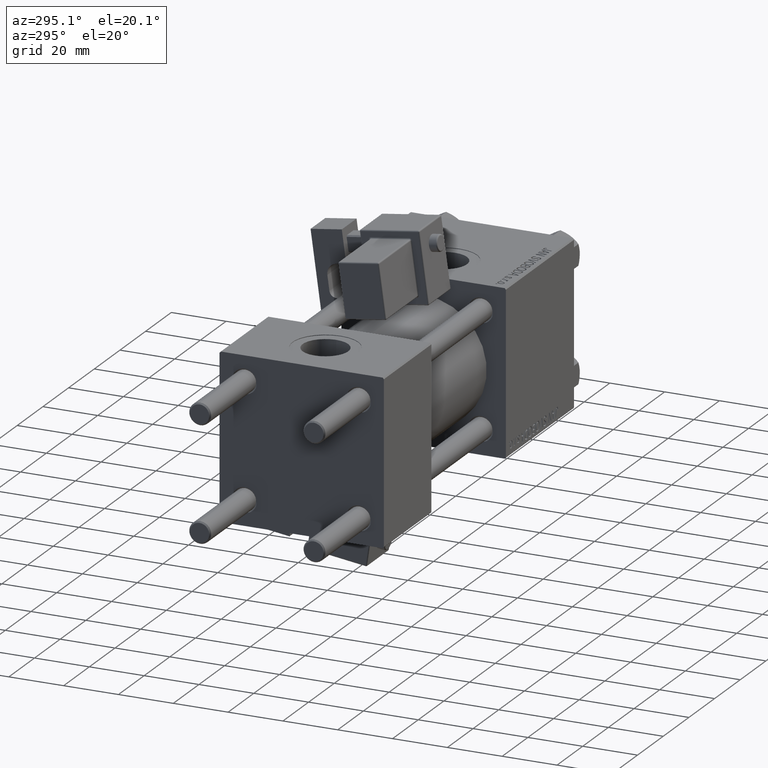
[diagram: clean part render]
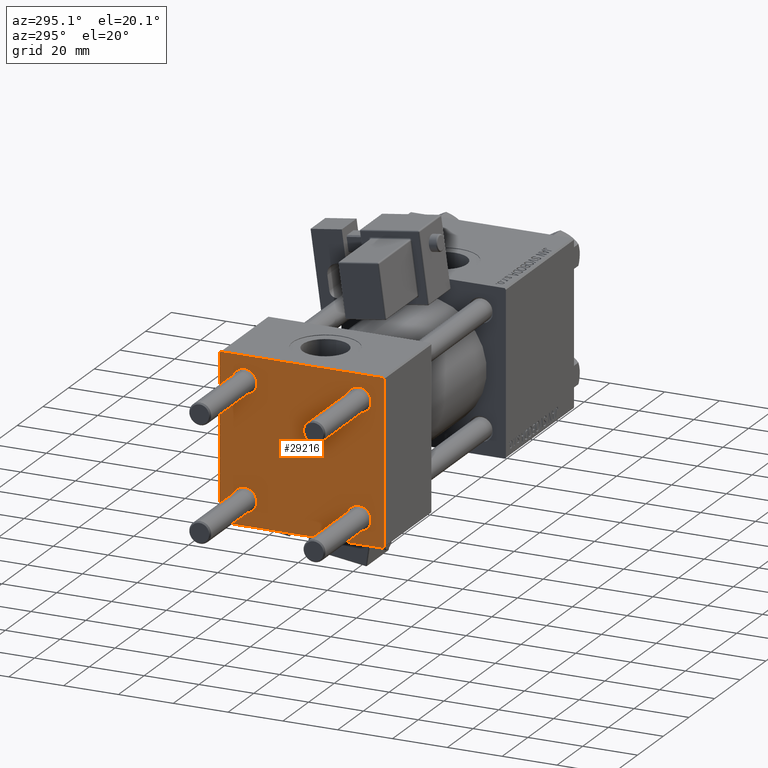
[diagram: same view with one face highlighted and labeled with its STEP entity id]
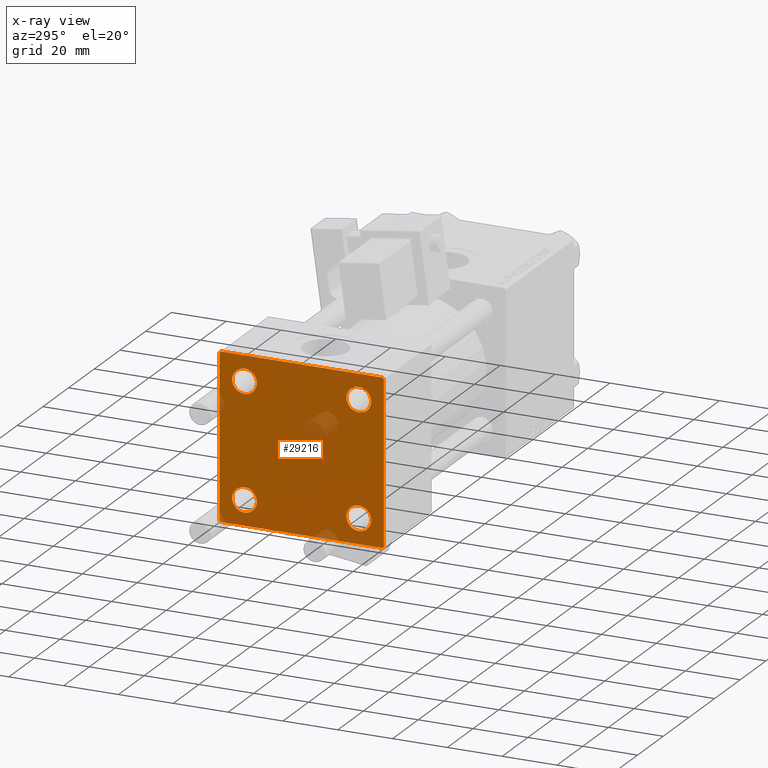
[diagram: x-ray of the same camera — body ghosted, the highlighted face saturated]
A machine part, auxiliary view. The second image highlights one B-rep face of the part: STEP entity #29216.
The next image is the same camera in x-ray: the body ghosted, the highlighted face saturated — about 4% of this face is hidden behind the body in this view.
In plain terms, the highlighted planar face has unit normal (-1, 0, 0).
Its self-contained STEP definition (entity closure, byte-faithful):
#207 = EDGE_CURVE ( 'NONE', #37905, #6154, #31478, .T. ) ;
#260 = EDGE_CURVE ( 'NONE', #13484, #4597, #34069, .T. ) ;
#2279 = CARTESIAN_POINT ( 'NONE',  ( 0.000000000000000000, -29.75000000000001066, -29.75000000000001066 ) ) ;
#2592 = CIRCLE ( 'NONE', #25284, 4.500000000000017764 ) ;
#2631 = EDGE_CURVE ( 'NONE', #45653, #3071, #40532, .T. ) ;
#3071 = VERTEX_POINT ( 'NONE', #14601 ) ;
#3127 = DIRECTION ( 'NONE',  ( 0.000000000000000000, 0.000000000000000000, 1.000000000000000000 ) ) ;
#3742 = CARTESIAN_POINT ( 'NONE',  ( 0.000000000000000000, -20.84999999999999076, -25.35000000000002274 ) ) ;
#4597 = VERTEX_POINT ( 'NONE', #34693 ) ;
#4680 = CARTESIAN_POINT ( 'NONE',  ( 0.000000000000000000, 20.84999999999999787, 20.85000000000000142 ) ) ;
#4714 = EDGE_CURVE ( 'NONE', #27192, #20747, #16222, .T. ) ;
#4750 = CARTESIAN_POINT ( 'NONE',  ( 0.000000000000000000, -20.84999999999999076, -20.85000000000000497 ) ) ;
#5234 = ORIENTED_EDGE ( 'NONE', *, *, #23193, .T. ) ;
#5280 = FACE_BOUND ( 'NONE', #42177, .T. ) ;
#5487 = ORIENTED_EDGE ( 'NONE', *, *, #20488, .T. ) ;
#5583 = VECTOR ( 'NONE', #35201, 1000.000000000000114 ) ;
#6072 = AXIS2_PLACEMENT_3D ( 'NONE', #4680, #32850, #45481 ) ;
#6154 = VERTEX_POINT ( 'NONE', #47894 ) ;
#6477 = AXIS2_PLACEMENT_3D ( 'NONE', #9665, #49172, #29682 ) ;
#6654 = DIRECTION ( 'NONE',  ( -0.000000000000000000, 0.7071067811865474617, 0.7071067811865474617 ) ) ;
#6988 = CARTESIAN_POINT ( 'NONE',  ( 0.000000000000000000, 20.84999999999999787, 16.34999999999998366 ) ) ;
#7073 = CARTESIAN_POINT ( 'NONE',  ( 0.000000000000000000, -20.84999999999999076, -20.85000000000000497 ) ) ;
#7699 = CARTESIAN_POINT ( 'NONE',  ( 0.000000000000000000, -20.84999999999999076, 16.34999999999998721 ) ) ;
#8148 = CARTESIAN_POINT ( 'NONE',  ( 0.000000000000000000, 29.74999999999999645, 29.74999999999999645 ) ) ;
#8557 = AXIS2_PLACEMENT_3D ( 'NONE', #30446, #50463, #18084 ) ;
#8914 = DIRECTION ( 'NONE',  ( 0.000000000000000000, 0.7071067811865474617, -0.7071067811865474617 ) ) ;
#9258 = DIRECTION ( 'NONE',  ( 0.000000000000000000, 0.000000000000000000, 1.000000000000000000 ) ) ;
#9488 = PLANE ( 'NONE',  #48918 ) ;
#9665 = CARTESIAN_POINT ( 'NONE',  ( 0.000000000000000000, 20.84999999999999787, 20.85000000000000142 ) ) ;
#9811 = DIRECTION ( 'NONE',  ( 0.000000000000000000, 0.000000000000000000, 1.000000000000000000 ) ) ;
#10215 = ORIENTED_EDGE ( 'NONE', *, *, #19589, .T. ) ;
#10765 = VECTOR ( 'NONE', #50151, 999.9999999999998863 ) ;
#10840 = VECTOR ( 'NONE', #36686, 1000.000000000000000 ) ;
#10927 = CARTESIAN_POINT ( 'NONE',  ( 0.000000000000000000, -20.84999999999999076, 20.85000000000000497 ) ) ;
#11009 = EDGE_CURVE ( 'NONE', #40515, #6154, #46417, .T. ) ;
#11045 = VERTEX_POINT ( 'NONE', #7699 ) ;
#11362 = CIRCLE ( 'NONE', #38404, 4.500000000000017764 ) ;
#11480 = EDGE_CURVE ( 'NONE', #40515, #20647, #18584, .T. ) ;
#12651 = CARTESIAN_POINT ( 'NONE',  ( 0.000000000000000000, 29.49999999999999289, 30.00000000000000000 ) ) ;
#13331 = ORIENTED_EDGE ( 'NONE', *, *, #11480, .F. ) ;
#13353 = CARTESIAN_POINT ( 'NONE',  ( 0.000000000000000000, 29.49999999999997868, -30.00000000000000000 ) ) ;
#13484 = VERTEX_POINT ( 'NONE', #35618 ) ;
#13496 = VERTEX_POINT ( 'NONE', #3742 ) ;
#13695 = DIRECTION ( 'NONE',  ( 1.000000000000000000, -0.000000000000000000, 0.000000000000000000 ) ) ;
#13830 = DIRECTION ( 'NONE',  ( 1.000000000000000000, -0.000000000000000000, 0.000000000000000000 ) ) ;
#14025 = DIRECTION ( 'NONE',  ( 1.000000000000000000, -0.000000000000000000, 0.000000000000000000 ) ) ;
#14601 = CARTESIAN_POINT ( 'NONE',  ( 0.000000000000000000, 20.84999999999999787, 25.35000000000001918 ) ) ;
#15309 = ORIENTED_EDGE ( 'NONE', *, *, #16921, .T. ) ;
#16222 = LINE ( 'NONE', #27557, #43018 ) ;
#16355 = VERTEX_POINT ( 'NONE', #19783 ) ;
#16726 = CARTESIAN_POINT ( 'NONE',  ( 0.000000000000000000, -29.50000000000000000, -30.00000000000000711 ) ) ;
#16921 = EDGE_CURVE ( 'NONE', #4597, #13484, #11362, .T. ) ;
#17711 = CARTESIAN_POINT ( 'NONE',  ( 0.000000000000000000, 20.84999999999999787, -20.85000000000000142 ) ) ;
#18084 = DIRECTION ( 'NONE',  ( 0.000000000000000000, 0.000000000000000000, 1.000000000000000000 ) ) ;
#18467 = ORIENTED_EDGE ( 'NONE', *, *, #24573, .T. ) ;
#18548 = CARTESIAN_POINT ( 'NONE',  ( 0.000000000000000000, 29.74999999999957723, -29.75000000000040501 ) ) ;
#18584 = LINE ( 'NONE', #35183, #45759 ) ;
#19589 = EDGE_CURVE ( 'NONE', #30327, #13496, #46777, .T. ) ;
#19783 = CARTESIAN_POINT ( 'NONE',  ( 0.000000000000000000, 29.99999999999999289, -29.50000000000000000 ) ) ;
#19846 = EDGE_CURVE ( 'NONE', #20747, #20647, #25967, .T. ) ;
#20488 = EDGE_CURVE ( 'NONE', #3071, #45653, #45979, .T. ) ;
#20647 = VERTEX_POINT ( 'NONE', #23859 ) ;
#20747 = VERTEX_POINT ( 'NONE', #16726 ) ;
#20851 = CARTESIAN_POINT ( 'NONE',  ( 0.000000000000000000, 29.99999999999999289, 30.00000000000000000 ) ) ;
#21067 = DIRECTION ( 'NONE',  ( 0.000000000000000000, 0.000000000000000000, 1.000000000000000000 ) ) ;
#22018 = CIRCLE ( 'NONE', #8557, 4.500000000000017764 ) ;
#22033 = ORIENTED_EDGE ( 'NONE', *, *, #49392, .T. ) ;
#22049 = ORIENTED_EDGE ( 'NONE', *, *, #2631, .T. ) ;
#22572 = ORIENTED_EDGE ( 'NONE', *, *, #25363, .T. ) ;
#23040 = DIRECTION ( 'NONE',  ( 0.000000000000000000, 0.000000000000000000, 1.000000000000000000 ) ) ;
#23193 = EDGE_CURVE ( 'NONE', #16355, #27192, #31174, .T. ) ;
#23374 = VERTEX_POINT ( 'NONE', #30264 ) ;
#23859 = CARTESIAN_POINT ( 'NONE',  ( 0.000000000000000000, -30.00000000000000000, -29.50000000000001776 ) ) ;
#24121 = DIRECTION ( 'NONE',  ( 0.000000000000000000, -1.000000000000000000, -1.156482317317871725E-16 ) ) ;
#24573 = EDGE_CURVE ( 'NONE', #27886, #16355, #28513, .T. ) ;
#24665 = ORIENTED_EDGE ( 'NONE', *, *, #4714, .T. ) ;
#25284 = AXIS2_PLACEMENT_3D ( 'NONE', #4750, #13695, #21067 ) ;
#25363 = EDGE_CURVE ( 'NONE', #11045, #23374, #28458, .T. ) ;
#25967 = LINE ( 'NONE', #2279, #5583 ) ;
#26021 = EDGE_LOOP ( 'NONE', ( #36305, #22572 ) ) ;
#26471 = DIRECTION ( 'NONE',  ( 0.000000000000000000, 0.000000000000000000, -1.000000000000000000 ) ) ;
#26598 = ORIENTED_EDGE ( 'NONE', *, *, #11009, .T. ) ;
#27192 = VERTEX_POINT ( 'NONE', #13353 ) ;
#27336 = VECTOR ( 'NONE', #36918, 1000.000000000000000 ) ;
#27557 = CARTESIAN_POINT ( 'NONE',  ( 0.000000000000000000, 29.99999999999999289, -30.00000000000000000 ) ) ;
#27886 = VERTEX_POINT ( 'NONE', #51964 ) ;
#28274 = AXIS2_PLACEMENT_3D ( 'NONE', #7073, #39200, #3127 ) ;
#28458 = CIRCLE ( 'NONE', #48635, 4.500000000000017764 ) ;
#28513 = LINE ( 'NONE', #45102, #10840 ) ;
#29216 = ADVANCED_FACE ( 'NONE', ( #41338, #5280, #41602, #40554, #45296 ), #9488, .T. ) ;
#29682 = DIRECTION ( 'NONE',  ( 0.000000000000000000, 0.000000000000000000, 1.000000000000000000 ) ) ;
#30097 = CARTESIAN_POINT ( 'NONE',  ( -0.000000000000000000, -29.74999999999999645, 29.74999999999999645 ) ) ;
#30264 = CARTESIAN_POINT ( 'NONE',  ( 0.000000000000000000, -20.84999999999999076, 25.35000000000002274 ) ) ;
#30327 = VERTEX_POINT ( 'NONE', #45175 ) ;
#30446 = CARTESIAN_POINT ( 'NONE',  ( 0.000000000000000000, -20.84999999999999076, 20.85000000000000497 ) ) ;
#31174 = LINE ( 'NONE', #18548, #10765 ) ;
#31478 = LINE ( 'NONE', #20851, #27336 ) ;
#31747 = CARTESIAN_POINT ( 'NONE',  ( 0.000000000000000000, 20.84999999999999787, -20.85000000000000142 ) ) ;
#32850 = DIRECTION ( 'NONE',  ( 1.000000000000000000, -0.000000000000000000, 0.000000000000000000 ) ) ;
#33462 = DIRECTION ( 'NONE',  ( -0.000000000000000000, 0.000000000000000000, 1.000000000000000000 ) ) ;
#34069 = CIRCLE ( 'NONE', #46658, 4.500000000000017764 ) ;
#34693 = CARTESIAN_POINT ( 'NONE',  ( 0.000000000000000000, 20.84999999999999787, -25.35000000000001918 ) ) ;
#35183 = CARTESIAN_POINT ( 'NONE',  ( 0.000000000000000000, -30.00000000000000000, 29.99999999999999289 ) ) ;
#35201 = DIRECTION ( 'NONE',  ( 0.000000000000000000, -0.7071067811865474617, 0.7071067811865474617 ) ) ;
#35618 = CARTESIAN_POINT ( 'NONE',  ( 0.000000000000000000, 20.84999999999999787, -16.34999999999998366 ) ) ;
#36305 = ORIENTED_EDGE ( 'NONE', *, *, #40206, .T. ) ;
#36676 = EDGE_LOOP ( 'NONE', ( #50215, #15309 ) ) ;
#36686 = DIRECTION ( 'NONE',  ( 0.000000000000000000, 0.000000000000000000, -1.000000000000000000 ) ) ;
#36836 = EDGE_CURVE ( 'NONE', #13496, #30327, #2592, .T. ) ;
#36918 = DIRECTION ( 'NONE',  ( 0.000000000000000000, -1.000000000000000000, -1.156482317317871725E-16 ) ) ;
#37405 = ORIENTED_EDGE ( 'NONE', *, *, #36836, .T. ) ;
#37905 = VERTEX_POINT ( 'NONE', #12651 ) ;
#38404 = AXIS2_PLACEMENT_3D ( 'NONE', #17711, #14025, #9811 ) ;
#38769 = EDGE_LOOP ( 'NONE', ( #18467, #5234, #24665, #42901, #13331, #26598, #42049, #22033 ) ) ;
#39200 = DIRECTION ( 'NONE',  ( 1.000000000000000000, -0.000000000000000000, 0.000000000000000000 ) ) ;
#40026 = VECTOR ( 'NONE', #8914, 1000.000000000000114 ) ;
#40206 = EDGE_CURVE ( 'NONE', #23374, #11045, #22018, .T. ) ;
#40515 = VERTEX_POINT ( 'NONE', #44375 ) ;
#40532 = CIRCLE ( 'NONE', #6072, 4.500000000000017764 ) ;
#40554 = FACE_BOUND ( 'NONE', #46181, .T. ) ;
#41338 = FACE_BOUND ( 'NONE', #26021, .T. ) ;
#41602 = FACE_BOUND ( 'NONE', #36676, .T. ) ;
#42049 = ORIENTED_EDGE ( 'NONE', *, *, #207, .F. ) ;
#42177 = EDGE_LOOP ( 'NONE', ( #10215, #37405 ) ) ;
#42901 = ORIENTED_EDGE ( 'NONE', *, *, #19846, .T. ) ;
#43018 = VECTOR ( 'NONE', #24121, 1000.000000000000000 ) ;
#44219 = LINE ( 'NONE', #8148, #40026 ) ;
#44375 = CARTESIAN_POINT ( 'NONE',  ( 0.000000000000000000, -30.00000000000000000, 29.49999999999999289 ) ) ;
#45102 = CARTESIAN_POINT ( 'NONE',  ( 0.000000000000000000, 29.99999999999999289, 30.00000000000000000 ) ) ;
#45175 = CARTESIAN_POINT ( 'NONE',  ( 0.000000000000000000, -20.84999999999999076, -16.34999999999998721 ) ) ;
#45296 = FACE_OUTER_BOUND ( 'NONE', #38769, .T. ) ;
#45481 = DIRECTION ( 'NONE',  ( 0.000000000000000000, 0.000000000000000000, 1.000000000000000000 ) ) ;
#45561 = CARTESIAN_POINT ( 'NONE',  ( 0.000000000000000000, 0.000000000000000000, 0.000000000000000000 ) ) ;
#45653 = VERTEX_POINT ( 'NONE', #6988 ) ;
#45759 = VECTOR ( 'NONE', #26471, 1000.000000000000000 ) ;
#45979 = CIRCLE ( 'NONE', #6477, 4.500000000000017764 ) ;
#46181 = EDGE_LOOP ( 'NONE', ( #5487, #22049 ) ) ;
#46417 = LINE ( 'NONE', #30097, #46631 ) ;
#46631 = VECTOR ( 'NONE', #6654, 1000.000000000000114 ) ;
#46658 = AXIS2_PLACEMENT_3D ( 'NONE', #31747, #49291, #9258 ) ;
#46777 = CIRCLE ( 'NONE', #28274, 4.500000000000017764 ) ;
#47894 = CARTESIAN_POINT ( 'NONE',  ( 0.000000000000000000, -29.49999999999998579, 29.99999999999999289 ) ) ;
#48635 = AXIS2_PLACEMENT_3D ( 'NONE', #10927, #13830, #23040 ) ;
#48918 = AXIS2_PLACEMENT_3D ( 'NONE', #45561, #48986, #33462 ) ;
#48986 = DIRECTION ( 'NONE',  ( -1.000000000000000000, 0.000000000000000000, -0.000000000000000000 ) ) ;
#49172 = DIRECTION ( 'NONE',  ( 1.000000000000000000, -0.000000000000000000, 0.000000000000000000 ) ) ;
#49291 = DIRECTION ( 'NONE',  ( 1.000000000000000000, -0.000000000000000000, 0.000000000000000000 ) ) ;
#49392 = EDGE_CURVE ( 'NONE', #37905, #27886, #44219, .T. ) ;
#50151 = DIRECTION ( 'NONE',  ( -0.000000000000000000, -0.7071067811865574537, -0.7071067811865376918 ) ) ;
#50215 = ORIENTED_EDGE ( 'NONE', *, *, #260, .T. ) ;
#50463 = DIRECTION ( 'NONE',  ( 1.000000000000000000, -0.000000000000000000, 0.000000000000000000 ) ) ;
#51964 = CARTESIAN_POINT ( 'NONE',  ( 0.000000000000000000, 29.99999999999999289, 29.50000000000000000 ) ) ;